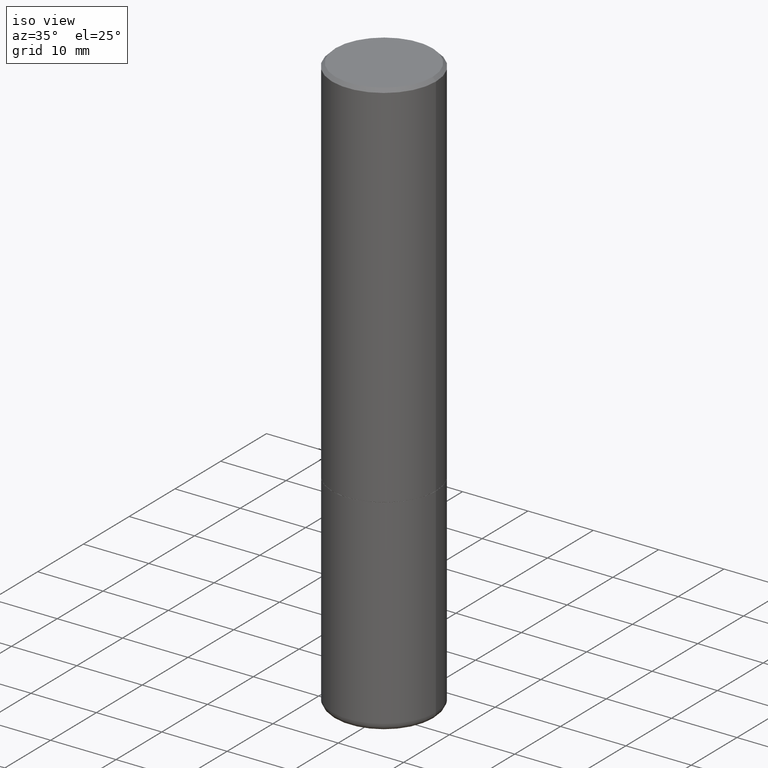
[diagram: clean part render]
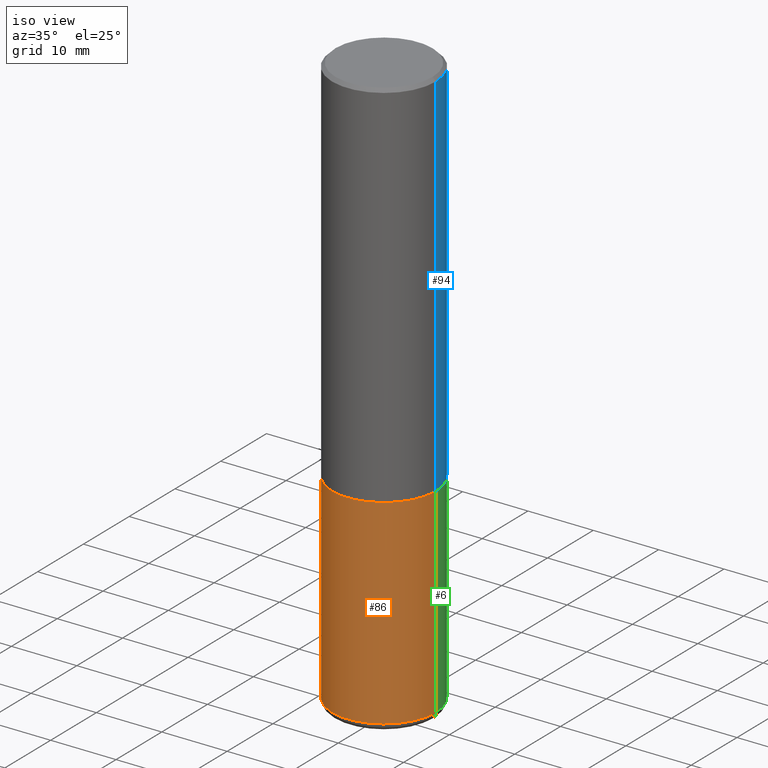
[diagram: same view with three faces highlighted in distinct colors, each labeled with its STEP entity id]
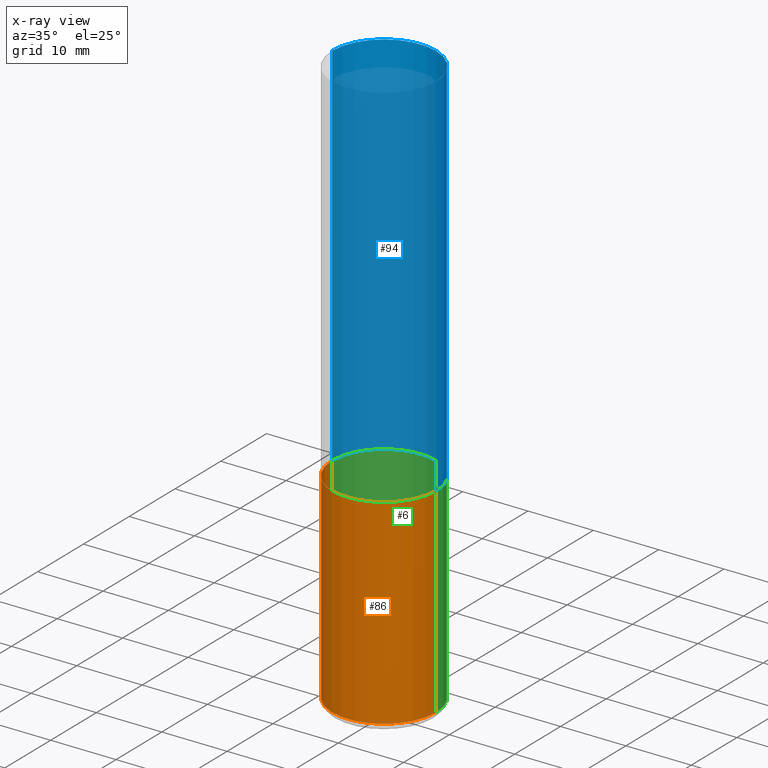
[diagram: x-ray of the same camera — body ghosted, the three highlighted faces saturated]
A machine part, iso view with three faces highlighted in distinct colors.
The next image is the same camera in x-ray (body ghosted, the three faces saturated) — at least one of them is partly hidden behind the body in this view.
Their STEP definitions:

[orange] entity #86 — the highlighted cylindrical surface (partial cylindrical patch) has radius 7.9375 mm, axis along (-0, 0, 1).
#9 = CARTESIAN_POINT ( 'NONE',  ( 0.3125000000000000000, -1.003800884917403364E-14, -2.249999999999999556 ) ) ;
#12 = EDGE_CURVE ( 'NONE', #231, #301, #193, .T. ) ;
#21 = EDGE_CURVE ( 'NONE', #227, #231, #427, .T. ) ;
#32 = DIRECTION ( 'NONE',  ( -2.445468806185136597E-29, 3.491481338843145583E-15, 1.000000000000000000 ) ) ;
#45 = CARTESIAN_POINT ( 'NONE',  ( 5.502304813916556222E-29, -7.855833012397075293E-15, -2.249999999999999556 ) ) ;
#53 = DIRECTION ( 'NONE',  ( 1.000000000000000000, -6.982962677686266711E-15, 4.876176775795936353E-29 ) ) ;
#62 = AXIS2_PLACEMENT_3D ( 'NONE', #154, #32, #440 ) ;
#63 = CARTESIAN_POINT ( 'NONE',  ( -0.3125000000000000000, -7.739112131260931893E-15, -3.455061670936044216 ) ) ;
#85 = ORIENTED_EDGE ( 'NONE', *, *, #207, .T. ) ;
#86 = ADVANCED_FACE ( 'NONE', ( #282 ), #251, .T. ) ;
#87 = CIRCLE ( 'NONE', #62, 0.3125000000000000000 ) ;
#92 = CARTESIAN_POINT ( 'NONE',  ( 0.3125000000000000000, -2.182175836776958347E-15, 1.523805242436230075E-29 ) ) ;
#127 = EDGE_LOOP ( 'NONE', ( #398, #439, #85, #336 ) ) ;
#148 = DIRECTION ( 'NONE',  ( -2.445468806185136877E-29, 3.491481338843145188E-15, 1.000000000000000000 ) ) ;
#154 = CARTESIAN_POINT ( 'NONE',  ( 8.449245539719989979E-29, -1.206328334862541465E-14, -3.455061670936044216 ) ) ;
#193 = CIRCLE ( 'NONE', #371, 0.3125000000000000000 ) ;
#203 = EDGE_CURVE ( 'NONE', #227, #330, #87, .T. ) ;
#207 = EDGE_CURVE ( 'NONE', #330, #301, #296, .T. ) ;
#227 = VERTEX_POINT ( 'NONE', #63 ) ;
#231 = VERTEX_POINT ( 'NONE', #303 ) ;
#248 = CARTESIAN_POINT ( 'NONE',  ( -0.3125000000000000000, 2.220446049250313081E-15, -1.537167215704658232E-29 ) ) ;
#251 = CYLINDRICAL_SURFACE ( 'NONE', #433, 0.3125000000000000000 ) ;
#268 = DIRECTION ( 'NONE',  ( -2.445468806185136877E-29, 3.491481338843145188E-15, 1.000000000000000000 ) ) ;
#271 = CARTESIAN_POINT ( 'NONE',  ( 0.3125000000000000000, -1.424545918540237458E-14, -3.455061670936044216 ) ) ;
#282 = FACE_OUTER_BOUND ( 'NONE', #127, .T. ) ;
#285 = DIRECTION ( 'NONE',  ( 1.000000000000000000, -6.982962677686265133E-15, 0.000000000000000000 ) ) ;
#296 = LINE ( 'NONE', #92, #332 ) ;
#301 = VERTEX_POINT ( 'NONE', #9 ) ;
#303 = CARTESIAN_POINT ( 'NONE',  ( -0.3125000000000000000, -7.739112131260931893E-15, -2.249999999999999556 ) ) ;
#306 = VECTOR ( 'NONE', #148, 39.37007874015748143 ) ;
#324 = DIRECTION ( 'NONE',  ( -2.445468806185136597E-29, 3.491481338843145583E-15, 1.000000000000000000 ) ) ;
#330 = VERTEX_POINT ( 'NONE', #271 ) ;
#332 = VECTOR ( 'NONE', #268, 39.37007874015748143 ) ;
#336 = ORIENTED_EDGE ( 'NONE', *, *, #12, .F. ) ;
#371 = AXIS2_PLACEMENT_3D ( 'NONE', #45, #324, #285 ) ;
#392 = DIRECTION ( 'NONE',  ( -2.445468806185136597E-29, 3.491481338843145583E-15, 1.000000000000000000 ) ) ;
#398 = ORIENTED_EDGE ( 'NONE', *, *, #21, .F. ) ;
#425 = CARTESIAN_POINT ( 'NONE',  ( 0.000000000000000000, 0.000000000000000000, 0.000000000000000000 ) ) ;
#427 = LINE ( 'NONE', #248, #306 ) ;
#433 = AXIS2_PLACEMENT_3D ( 'NONE', #425, #392, #53 ) ;
#439 = ORIENTED_EDGE ( 'NONE', *, *, #203, .T. ) ;
#440 = DIRECTION ( 'NONE',  ( 1.000000000000000000, -6.982962677686269077E-15, 0.000000000000000000 ) ) ;

[blue] entity #94 — the highlighted cylindrical surface (partial cylindrical patch) has radius 7.9375 mm, axis along (-0, 0, 1).
#7 = VERTEX_POINT ( 'NONE', #430 ) ;
#11 = CIRCLE ( 'NONE', #212, 0.3124999999999998335 ) ;
#33 = VERTEX_POINT ( 'NONE', #289 ) ;
#34 = DIRECTION ( 'NONE',  ( 1.000000000000000000, -6.982962677686266711E-15, 4.876176775795935232E-29 ) ) ;
#36 = DIRECTION ( 'NONE',  ( -2.445468806185136877E-29, 3.491481338843145188E-15, 1.000000000000000000 ) ) ;
#40 = AXIS2_PLACEMENT_3D ( 'NONE', #375, #71, #169 ) ;
#56 = DIRECTION ( 'NONE',  ( -2.445468806185136597E-29, 3.491481338843145583E-15, 1.000000000000000000 ) ) ;
#64 = CARTESIAN_POINT ( 'NONE',  ( -0.3125000000000000000, -1.740639529667232739E-15, -2.248999999999999222 ) ) ;
#68 = CIRCLE ( 'NONE', #40, 0.3125000000000000000 ) ;
#71 = DIRECTION ( 'NONE',  ( -2.445468806185136597E-29, 3.491481338843145583E-15, 1.000000000000000000 ) ) ;
#88 = CARTESIAN_POINT ( 'NONE',  ( 0.000000000000000000, 0.000000000000000000, 0.000000000000000000 ) ) ;
#94 = ADVANCED_FACE ( 'NONE', ( #400 ), #157, .T. ) ;
#96 = ORIENTED_EDGE ( 'NONE', *, *, #237, .F. ) ;
#99 = EDGE_LOOP ( 'NONE', ( #155, #403, #436, #96 ) ) ;
#104 = CARTESIAN_POINT ( 'NONE',  ( 0.3124999999999998890, -2.182175836776957558E-15, 1.523805242436229235E-29 ) ) ;
#145 = VECTOR ( 'NONE', #209, 39.37007874015748143 ) ;
#155 = ORIENTED_EDGE ( 'NONE', *, *, #429, .T. ) ;
#156 = AXIS2_PLACEMENT_3D ( 'NONE', #88, #56, #34 ) ;
#157 = CYLINDRICAL_SURFACE ( 'NONE', #156, 0.3124999999999998890 ) ;
#167 = CARTESIAN_POINT ( 'NONE',  ( 0.3124999999999998335, -2.213735251080465334E-15, -0.02000000000000001776 ) ) ;
#169 = DIRECTION ( 'NONE',  ( 1.000000000000000000, -6.982962677686269077E-15, 0.000000000000000000 ) ) ;
#209 = DIRECTION ( 'NONE',  ( -2.445468806185136877E-29, 3.491481338843145188E-15, 1.000000000000000000 ) ) ;
#212 = AXIS2_PLACEMENT_3D ( 'NONE', #346, #382, #377 ) ;
#237 = EDGE_CURVE ( 'NONE', #33, #421, #442, .T. ) ;
#257 = EDGE_CURVE ( 'NONE', #421, #7, #11, .T. ) ;
#273 = VECTOR ( 'NONE', #36, 39.37007874015748143 ) ;
#289 = CARTESIAN_POINT ( 'NONE',  ( 0.3125000000000000000, -1.003451736783519063E-14, -2.248999999999999222 ) ) ;
#346 = CARTESIAN_POINT ( 'NONE',  ( 4.890937612370276662E-31, -6.982962677686296539E-17, -0.02000000000000001776 ) ) ;
#375 = CARTESIAN_POINT ( 'NONE',  ( 5.499859345110370619E-29, -7.852341531058232286E-15, -2.248999999999999222 ) ) ;
#376 = VERTEX_POINT ( 'NONE', #64 ) ;
#377 = DIRECTION ( 'NONE',  ( 1.000000000000000000, -6.982962677686266711E-15, 0.000000000000000000 ) ) ;
#380 = LINE ( 'NONE', #414, #273 ) ;
#382 = DIRECTION ( 'NONE',  ( -2.445468806185136597E-29, 3.491481338843145583E-15, 1.000000000000000000 ) ) ;
#400 = FACE_OUTER_BOUND ( 'NONE', #99, .T. ) ;
#403 = ORIENTED_EDGE ( 'NONE', *, *, #404, .T. ) ;
#404 = EDGE_CURVE ( 'NONE', #376, #7, #380, .T. ) ;
#414 = CARTESIAN_POINT ( 'NONE',  ( -0.3124999999999998890, 2.220446049250312292E-15, -1.537167215704657391E-29 ) ) ;
#421 = VERTEX_POINT ( 'NONE', #167 ) ;
#429 = EDGE_CURVE ( 'NONE', #33, #376, #68, .T. ) ;
#430 = CARTESIAN_POINT ( 'NONE',  ( -0.3124999999999998335, 2.112346210000093866E-15, -0.02000000000000001776 ) ) ;
#436 = ORIENTED_EDGE ( 'NONE', *, *, #257, .F. ) ;
#442 = LINE ( 'NONE', #104, #145 ) ;

[green] entity #6 — the highlighted cylindrical surface (partial cylindrical patch) has radius 7.9375 mm, axis along (-0, 0, 1).
#4 = ORIENTED_EDGE ( 'NONE', *, *, #275, .F. ) ;
#6 = ADVANCED_FACE ( 'NONE', ( #432 ), #110, .T. ) ;
#9 = CARTESIAN_POINT ( 'NONE',  ( 0.3125000000000000000, -1.003800884917403364E-14, -2.249999999999999556 ) ) ;
#21 = EDGE_CURVE ( 'NONE', #227, #231, #427, .T. ) ;
#63 = CARTESIAN_POINT ( 'NONE',  ( -0.3125000000000000000, -7.739112131260931893E-15, -3.455061670936044216 ) ) ;
#82 = CARTESIAN_POINT ( 'NONE',  ( 8.449245539719989979E-29, -1.206328334862541465E-14, -3.455061670936044216 ) ) ;
#92 = CARTESIAN_POINT ( 'NONE',  ( 0.3125000000000000000, -2.182175836776958347E-15, 1.523805242436230075E-29 ) ) ;
#109 = DIRECTION ( 'NONE',  ( 1.000000000000000000, -6.982962677686266711E-15, 4.876176775795936353E-29 ) ) ;
#110 = CYLINDRICAL_SURFACE ( 'NONE', #347, 0.3125000000000000000 ) ;
#111 = EDGE_CURVE ( 'NONE', #330, #227, #284, .T. ) ;
#138 = DIRECTION ( 'NONE',  ( 1.000000000000000000, -6.982962677686265133E-15, 0.000000000000000000 ) ) ;
#144 = DIRECTION ( 'NONE',  ( -2.445468806185136597E-29, 3.491481338843145583E-15, 1.000000000000000000 ) ) ;
#148 = DIRECTION ( 'NONE',  ( -2.445468806185136877E-29, 3.491481338843145188E-15, 1.000000000000000000 ) ) ;
#163 = CARTESIAN_POINT ( 'NONE',  ( 5.502304813916556222E-29, -7.855833012397075293E-15, -2.249999999999999556 ) ) ;
#179 = CARTESIAN_POINT ( 'NONE',  ( 0.000000000000000000, 0.000000000000000000, 0.000000000000000000 ) ) ;
#194 = EDGE_LOOP ( 'NONE', ( #416, #262, #4, #272 ) ) ;
#207 = EDGE_CURVE ( 'NONE', #330, #301, #296, .T. ) ;
#226 = DIRECTION ( 'NONE',  ( 1.000000000000000000, -6.982962677686269077E-15, 0.000000000000000000 ) ) ;
#227 = VERTEX_POINT ( 'NONE', #63 ) ;
#231 = VERTEX_POINT ( 'NONE', #303 ) ;
#240 = AXIS2_PLACEMENT_3D ( 'NONE', #163, #412, #138 ) ;
#248 = CARTESIAN_POINT ( 'NONE',  ( -0.3125000000000000000, 2.220446049250313081E-15, -1.537167215704658232E-29 ) ) ;
#262 = ORIENTED_EDGE ( 'NONE', *, *, #21, .T. ) ;
#268 = DIRECTION ( 'NONE',  ( -2.445468806185136877E-29, 3.491481338843145188E-15, 1.000000000000000000 ) ) ;
#271 = CARTESIAN_POINT ( 'NONE',  ( 0.3125000000000000000, -1.424545918540237458E-14, -3.455061670936044216 ) ) ;
#272 = ORIENTED_EDGE ( 'NONE', *, *, #207, .F. ) ;
#275 = EDGE_CURVE ( 'NONE', #301, #231, #308, .T. ) ;
#284 = CIRCLE ( 'NONE', #401, 0.3125000000000000000 ) ;
#296 = LINE ( 'NONE', #92, #332 ) ;
#301 = VERTEX_POINT ( 'NONE', #9 ) ;
#303 = CARTESIAN_POINT ( 'NONE',  ( -0.3125000000000000000, -7.739112131260931893E-15, -2.249999999999999556 ) ) ;
#306 = VECTOR ( 'NONE', #148, 39.37007874015748143 ) ;
#308 = CIRCLE ( 'NONE', #240, 0.3125000000000000000 ) ;
#327 = DIRECTION ( 'NONE',  ( -2.445468806185136597E-29, 3.491481338843145583E-15, 1.000000000000000000 ) ) ;
#330 = VERTEX_POINT ( 'NONE', #271 ) ;
#332 = VECTOR ( 'NONE', #268, 39.37007874015748143 ) ;
#347 = AXIS2_PLACEMENT_3D ( 'NONE', #179, #144, #109 ) ;
#401 = AXIS2_PLACEMENT_3D ( 'NONE', #82, #327, #226 ) ;
#412 = DIRECTION ( 'NONE',  ( -2.445468806185136597E-29, 3.491481338843145583E-15, 1.000000000000000000 ) ) ;
#416 = ORIENTED_EDGE ( 'NONE', *, *, #111, .T. ) ;
#427 = LINE ( 'NONE', #248, #306 ) ;
#432 = FACE_OUTER_BOUND ( 'NONE', #194, .T. ) ;